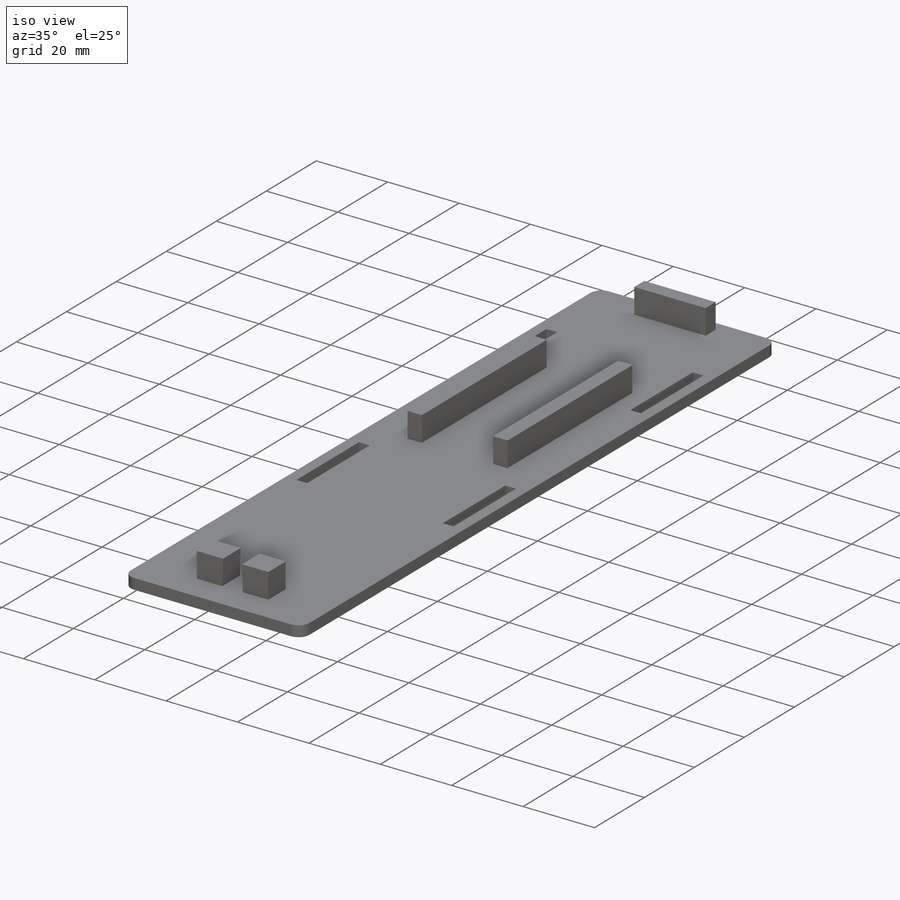
[diagram: iso view]
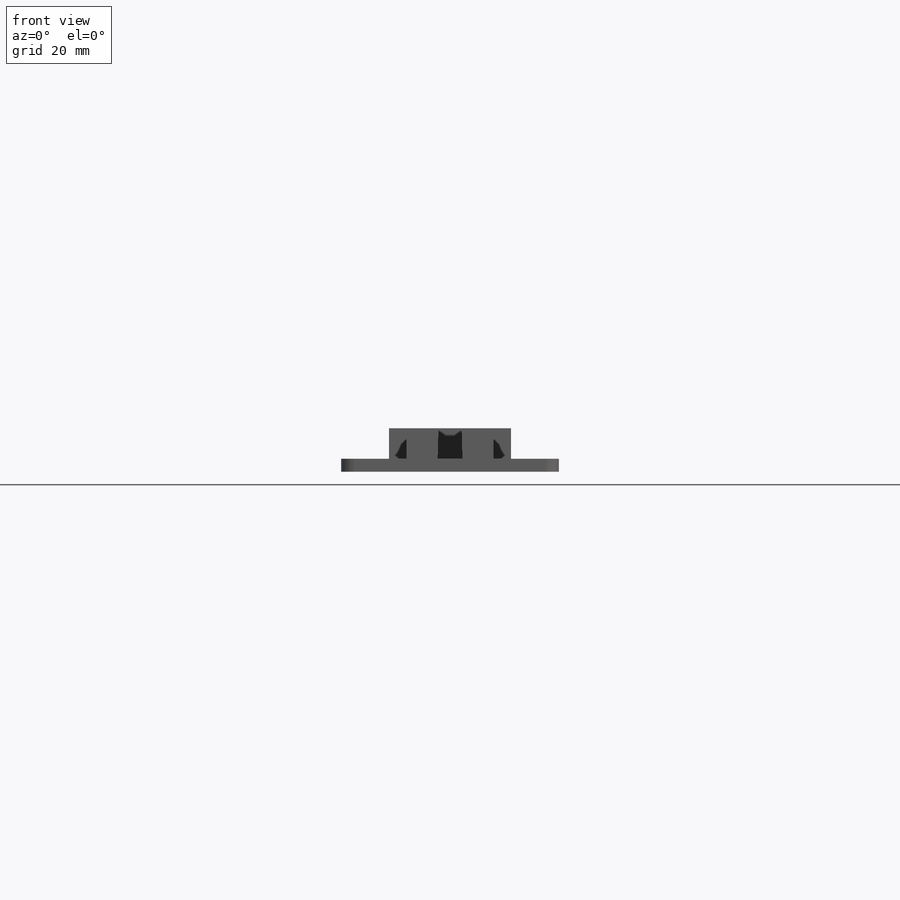
[diagram: front view]
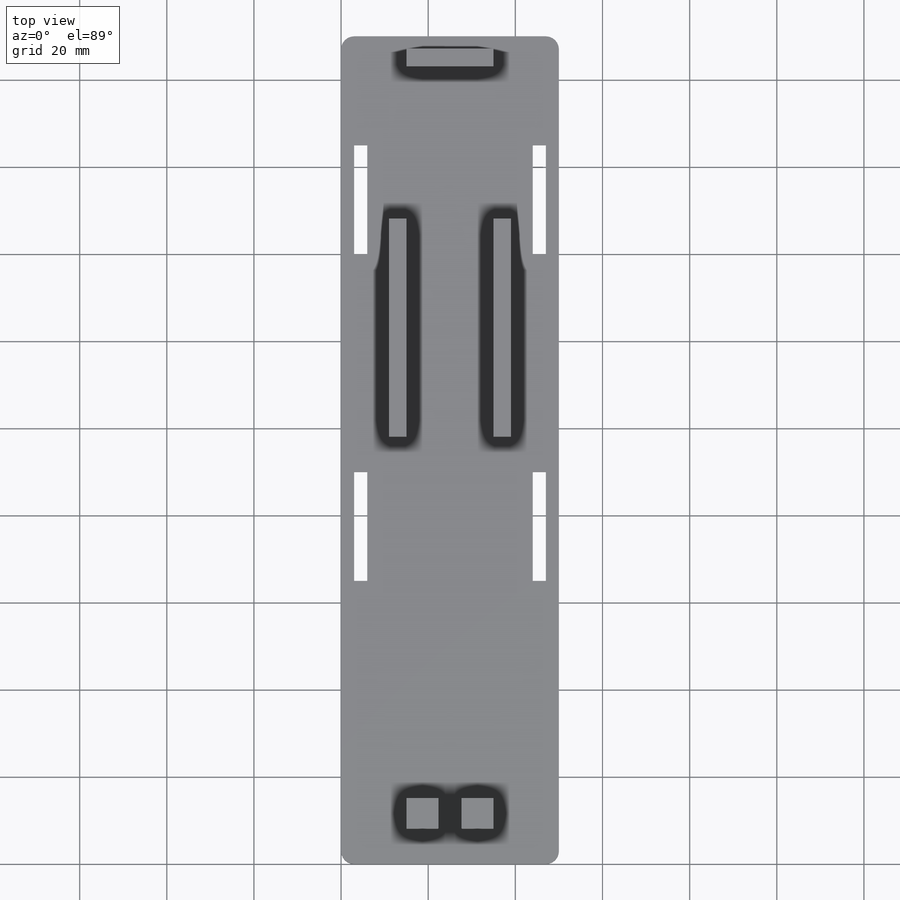
[diagram: top view]
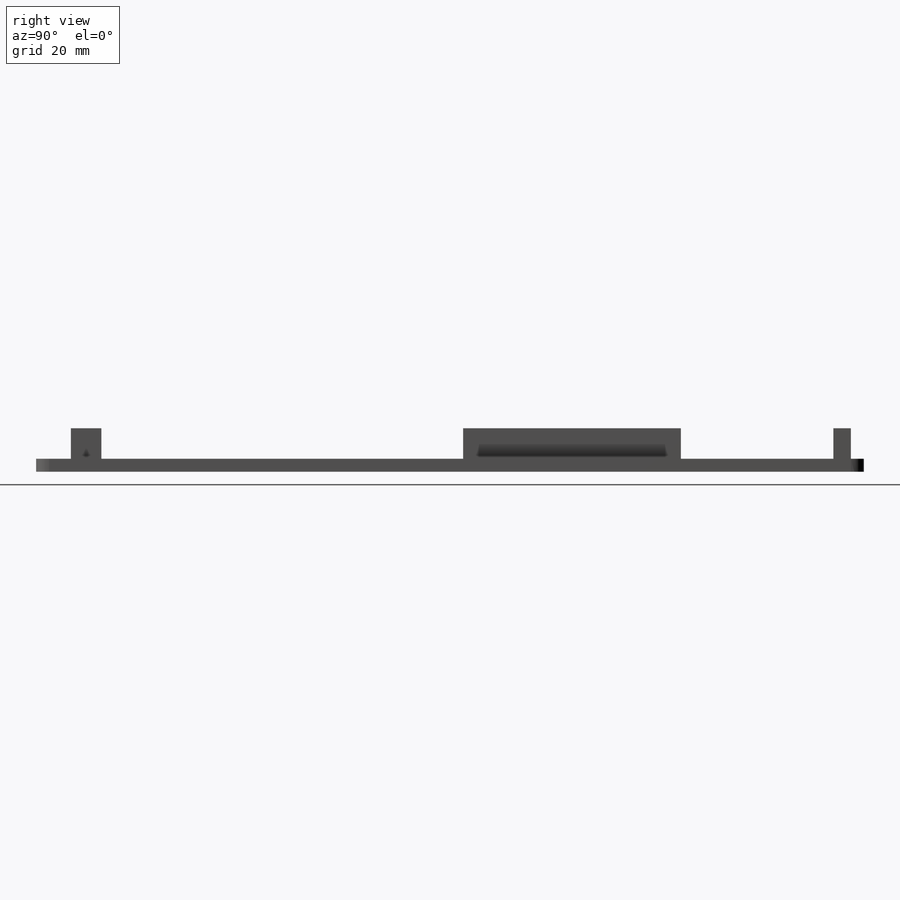
[diagram: right view]
SOLIDWORKS PART (.sldprt)
format: sldprt  version: not decoded by parser v0  size: 270,848 bytes
history: native  units: mm
features: sketch x5, extrude x3, cut_extrude x2, material x1, fillet x1 (+13 scaffold rows collapsed)
feature tree (25):
  scaffold x13  (default folders/planes/origin — collapsed)
  material  "Material <not specified>"
  sketch  "Sketch1"  dims[D1=190.0mm D2=50.0mm]
  extrude  "Boss-Extrude1"  Depth=3mm
  fillet  "Fillet1"  Radius=3mm
  sketch  "Sketch2"  dims[D1=20.0mm D2=4.0mm D3=3.0mm D4=15.0mm D5=4.0mm D6=0.0mm D7=50.0mm D8=35.0mm D9=4.0mm D10=20.0mm D11=50.0mm D12=35.0mm]
  extrude  "Boss-Extrude2"  Depth=7mm
  sketch  "Sketch3"  dims[D1=20.0mm D2=15.0mm D3=7.0mm D4=8.0mm]
  extrude  "Boss-Extrude3"  Depth=7mm
  sketch  "Sketch5"  dims[D1=5.7mm D2=5.3mm D3=7.15mm D4=7.35mm]
  cut_extrude  "Cut-Extrude1"  Depth=7mm
  sketch  "Sketch6"  dims[D1=3.0mm D2=25.0mm D3=25.0mm D4=3.0mm D5=3.0mm D6=3.0mm D7=25.0mm D8=25.0mm D9=25.0mm D10=50.0mm D11=3.0mm D12=3.0mm D13=3.0mm D14=3.0mm D15=25.0mm D16=50.0mm]
  cut_extrude  "Cut-Extrude2"  Depth=7mm
decode coverage: 11 of 11 modeling features carry decoded parameters
note: suppression state not decoded; provenance and decode notes live in map.json
